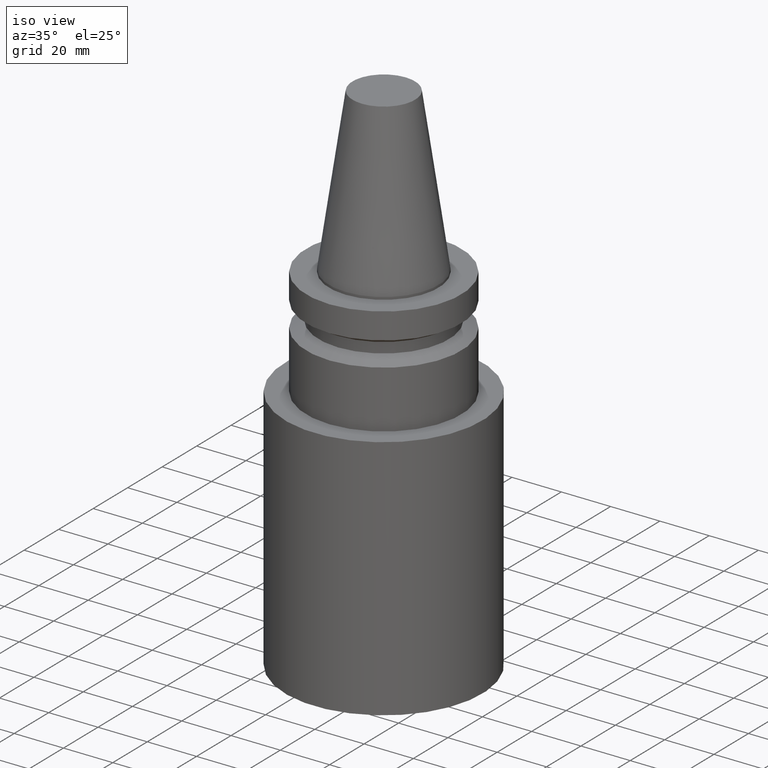
[diagram: clean part render]
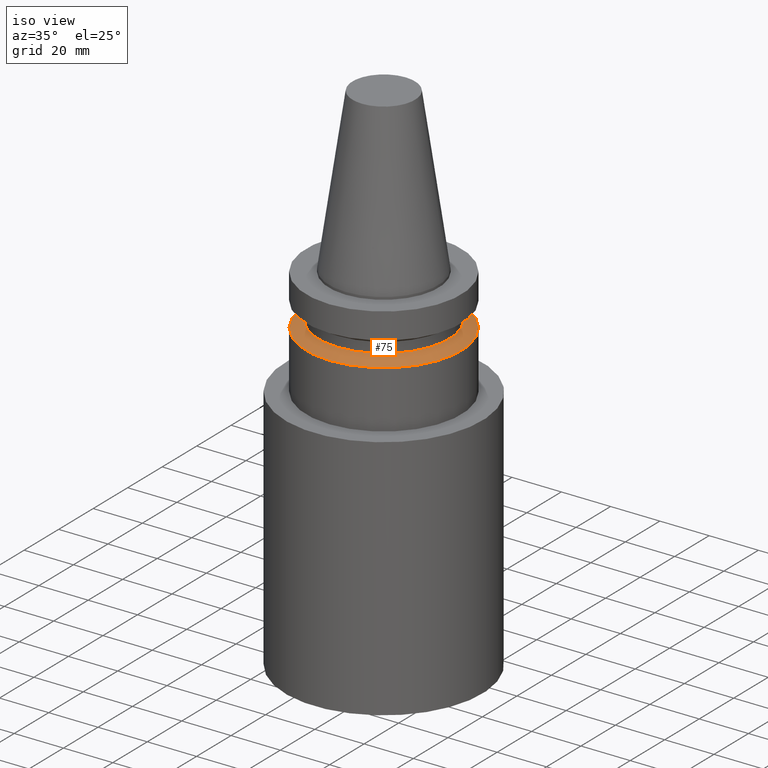
[diagram: same view with one face highlighted and labeled with its STEP entity id]
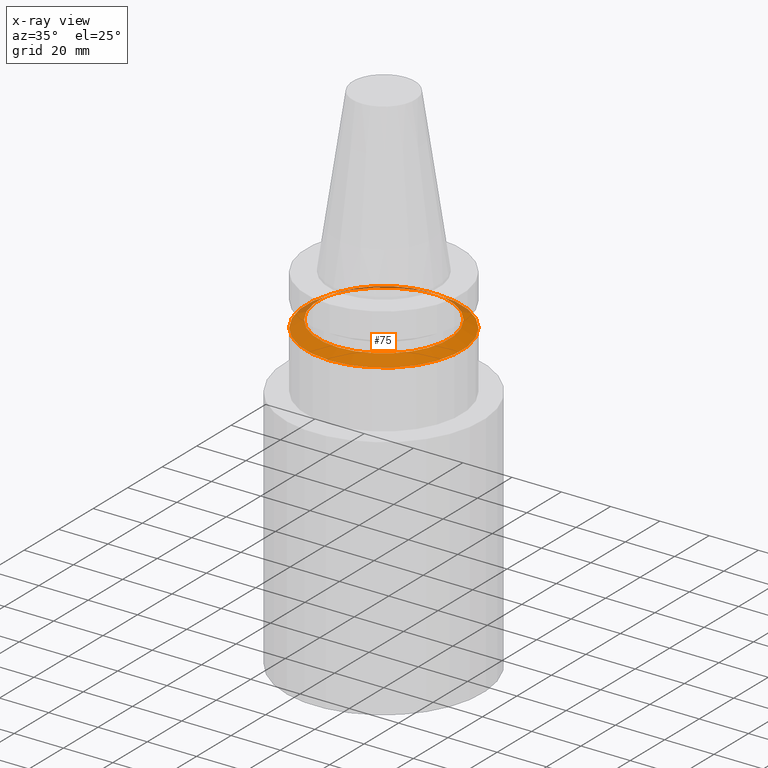
[diagram: x-ray of the same camera — body ghosted, the highlighted face saturated]
A machine part, iso view. The second image highlights one B-rep face of the part: STEP entity #75.
The next image is the same camera in x-ray: the body ghosted, the highlighted face saturated — about 9% of this face is hidden behind the body in this view.
In plain terms, the highlighted conical surface has half-angle 60 deg.
Its self-contained STEP definition (entity closure, byte-faithful):
#75=ADVANCED_FACE('',(#89,#90),#91,.T.);
#89=FACE_BOUND('',#126,.T.);
#90=FACE_BOUND('',#127,.T.);
#91=CONICAL_SURFACE('',#128,29.0,1.04719755058882);
#126=EDGE_LOOP('',(#163));
#127=EDGE_LOOP('',(#164));
#128=AXIS2_PLACEMENT_3D('',#165,#166,#167);
#163=ORIENTED_EDGE('',*,*,#226,.F.);
#164=ORIENTED_EDGE('',*,*,#227,.T.);
#165=CARTESIAN_POINT('',(1.23423727306135E-015,2.46847454612269E-015,-20.156624325));
#166=DIRECTION('',(6.12323399573677E-017,1.22464679914735E-016,-1.0));
#167=DIRECTION('',(-1.23259516440783E-032,1.0,1.22464679914735E-016));
#226=EDGE_CURVE('',#238,#238,#239,.T.);
#227=EDGE_CURVE('',#240,#240,#241,.T.);
#238=VERTEX_POINT('',#262);
#239=CIRCLE('',#263,31.5);
#240=VERTEX_POINT('',#264);
#241=CIRCLE('',#265,26.5);
#262=CARTESIAN_POINT('',(1.32261854307914E-015,31.5,-21.6));
#263=AXIS2_PLACEMENT_3D('',#286,#287,#288);
#264=CARTESIAN_POINT('',(1.14585600304355E-015,26.5,-18.71324865));
#265=AXIS2_PLACEMENT_3D('',#289,#290,#291);
#286=CARTESIAN_POINT('',(1.32261854307914E-015,2.64523708615828E-015,-21.6));
#287=DIRECTION('',(6.12323399573677E-017,1.22464679914735E-016,-1.0));
#288=DIRECTION('',(-1.23259516440783E-032,1.0,1.22464679914735E-016));
#289=CARTESIAN_POINT('',(1.14585600304355E-015,2.2917120060871E-015,-18.71324865));
#290=DIRECTION('',(6.12323399573677E-017,1.22464679914735E-016,-1.0));
#291=DIRECTION('',(-1.23259516440783E-032,1.0,1.22464679914735E-016));